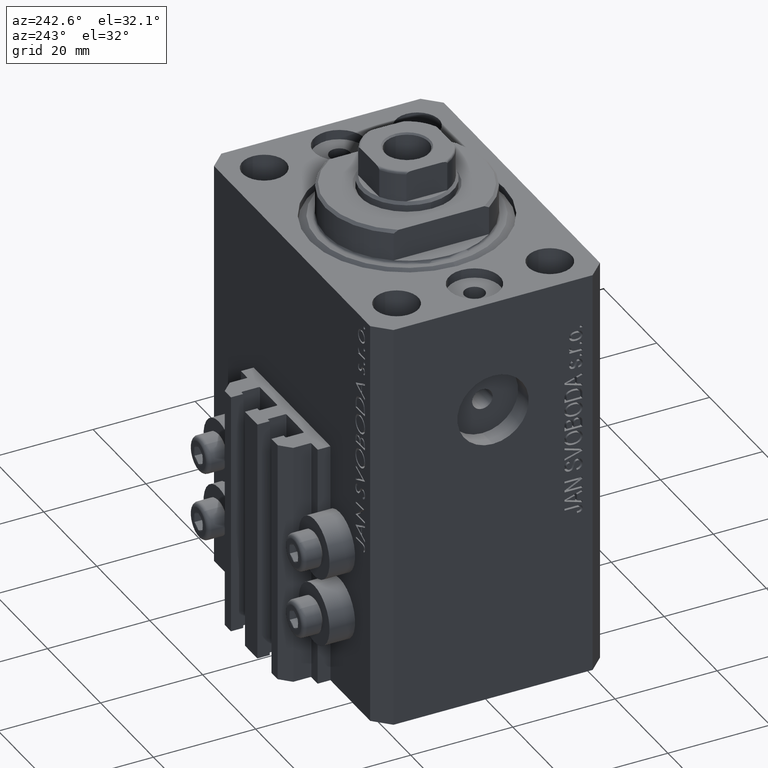
[diagram: clean part render]
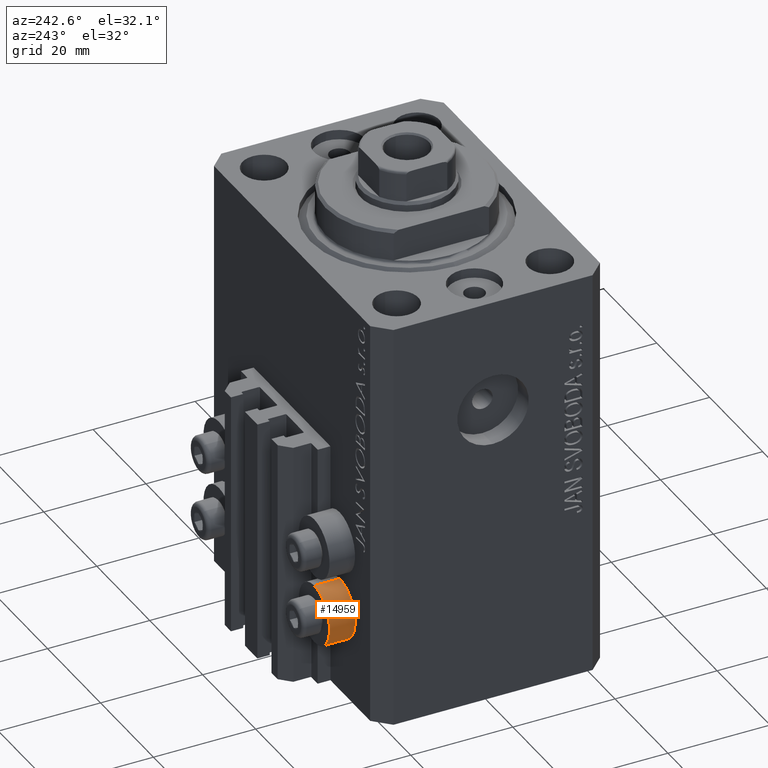
[diagram: same view with one face highlighted and labeled with its STEP entity id]
A machine part, auxiliary view. The second image highlights one B-rep face of the part: STEP entity #14959.
In plain terms, the highlighted cylindrical surface (edge-blend (fillet) strip) has radius 5.8 mm, axis along (0, 1, 0).
Its self-contained STEP definition (entity closure, byte-faithful):
#313 = DIRECTION ( 'NONE',  ( -0.000000000000000000, -1.000000000000000000, -0.000000000000000000 ) ) ;
#2589 = CARTESIAN_POINT ( 'NONE',  ( -18.00000000000000355, 22.49999999999951328, -58.20000000000000284 ) ) ;
#3582 = LINE ( 'NONE', #29100, #20603 ) ;
#3914 = CARTESIAN_POINT ( 'NONE',  ( -18.00000000000000355, 22.49999999999951328, -64.00000000000000000 ) ) ;
#3927 = EDGE_CURVE ( 'NONE', #38658, #28389, #16789, .T. ) ;
#5200 = CARTESIAN_POINT ( 'NONE',  ( -18.00000000000000355, 22.49999999999951328, -69.79999999999999716 ) ) ;
#5520 = LINE ( 'NONE', #33914, #33972 ) ;
#6468 = CIRCLE ( 'NONE', #37681, 5.799999999999999822 ) ;
#7082 = EDGE_CURVE ( 'NONE', #46856, #30932, #6468, .T. ) ;
#7191 = ORIENTED_EDGE ( 'NONE', *, *, #7082, .T. ) ;
#7868 = ORIENTED_EDGE ( 'NONE', *, *, #38447, .T. ) ;
#8381 = AXIS2_PLACEMENT_3D ( 'NONE', #3914, #313, #14895 ) ;
#9260 = FACE_OUTER_BOUND ( 'NONE', #25059, .T. ) ;
#11910 = CARTESIAN_POINT ( 'NONE',  ( -18.00000000000000355, 27.49999999996051514, -64.00000000000000000 ) ) ;
#14895 = DIRECTION ( 'NONE',  ( 0.000000000000000000, 0.000000000000000000, -1.000000000000000000 ) ) ;
#14959 = ADVANCED_FACE ( 'NONE', ( #9260 ), #28126, .T. ) ;
#16789 = CIRCLE ( 'NONE', #8381, 5.799999999999999822 ) ;
#19164 = EDGE_CURVE ( 'NONE', #28389, #30932, #5520, .T. ) ;
#20603 = VECTOR ( 'NONE', #43653, 1000.000000000000000 ) ;
#21538 = ORIENTED_EDGE ( 'NONE', *, *, #3927, .F. ) ;
#23823 = DIRECTION ( 'NONE',  ( 0.000000000000000000, 0.000000000000000000, -1.000000000000000000 ) ) ;
#25059 = EDGE_LOOP ( 'NONE', ( #21538, #7868, #7191, #26247 ) ) ;
#26247 = ORIENTED_EDGE ( 'NONE', *, *, #19164, .F. ) ;
#26455 = DIRECTION ( 'NONE',  ( -0.000000000000000000, -1.000000000000000000, -0.000000000000000000 ) ) ;
#28126 = CYLINDRICAL_SURFACE ( 'NONE', #32958, 5.799999999999999822 ) ;
#28389 = VERTEX_POINT ( 'NONE', #5200 ) ;
#29100 = CARTESIAN_POINT ( 'NONE',  ( -18.00000000000000355, 27.49999999996051514, -58.20000000000000284 ) ) ;
#30932 = VERTEX_POINT ( 'NONE', #39280 ) ;
#32958 = AXIS2_PLACEMENT_3D ( 'NONE', #42665, #39085, #23823 ) ;
#33682 = DIRECTION ( 'NONE',  ( 0.000000000000000000, 1.000000000000000000, 0.000000000000000000 ) ) ;
#33914 = CARTESIAN_POINT ( 'NONE',  ( -18.00000000000000355, 27.49999999996051514, -69.79999999999999716 ) ) ;
#33972 = VECTOR ( 'NONE', #33682, 1000.000000000000000 ) ;
#35421 = CARTESIAN_POINT ( 'NONE',  ( -18.00000000000000355, 27.49999999996051514, -58.20000000000000284 ) ) ;
#37424 = DIRECTION ( 'NONE',  ( 0.000000000000000000, 0.000000000000000000, -1.000000000000000000 ) ) ;
#37681 = AXIS2_PLACEMENT_3D ( 'NONE', #11910, #26455, #37424 ) ;
#38447 = EDGE_CURVE ( 'NONE', #38658, #46856, #3582, .T. ) ;
#38658 = VERTEX_POINT ( 'NONE', #2589 ) ;
#39085 = DIRECTION ( 'NONE',  ( 0.000000000000000000, 1.000000000000000000, 0.000000000000000000 ) ) ;
#39280 = CARTESIAN_POINT ( 'NONE',  ( -18.00000000000000355, 27.49999999996051514, -69.79999999999999716 ) ) ;
#42665 = CARTESIAN_POINT ( 'NONE',  ( -18.00000000000000355, 27.49999999996051514, -64.00000000000000000 ) ) ;
#43653 = DIRECTION ( 'NONE',  ( 0.000000000000000000, 1.000000000000000000, 0.000000000000000000 ) ) ;
#46856 = VERTEX_POINT ( 'NONE', #35421 ) ;